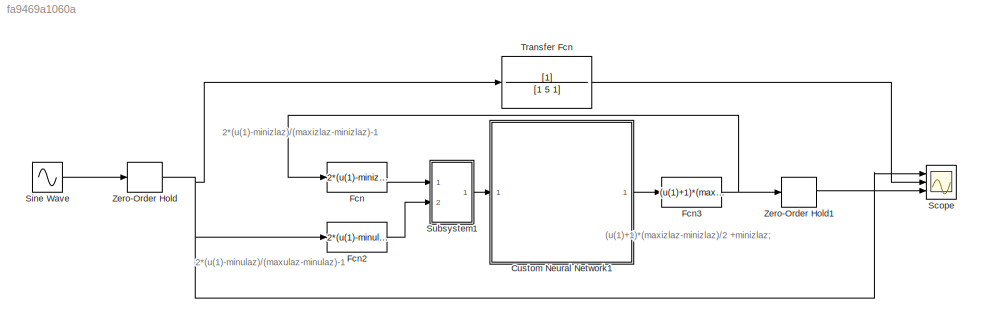
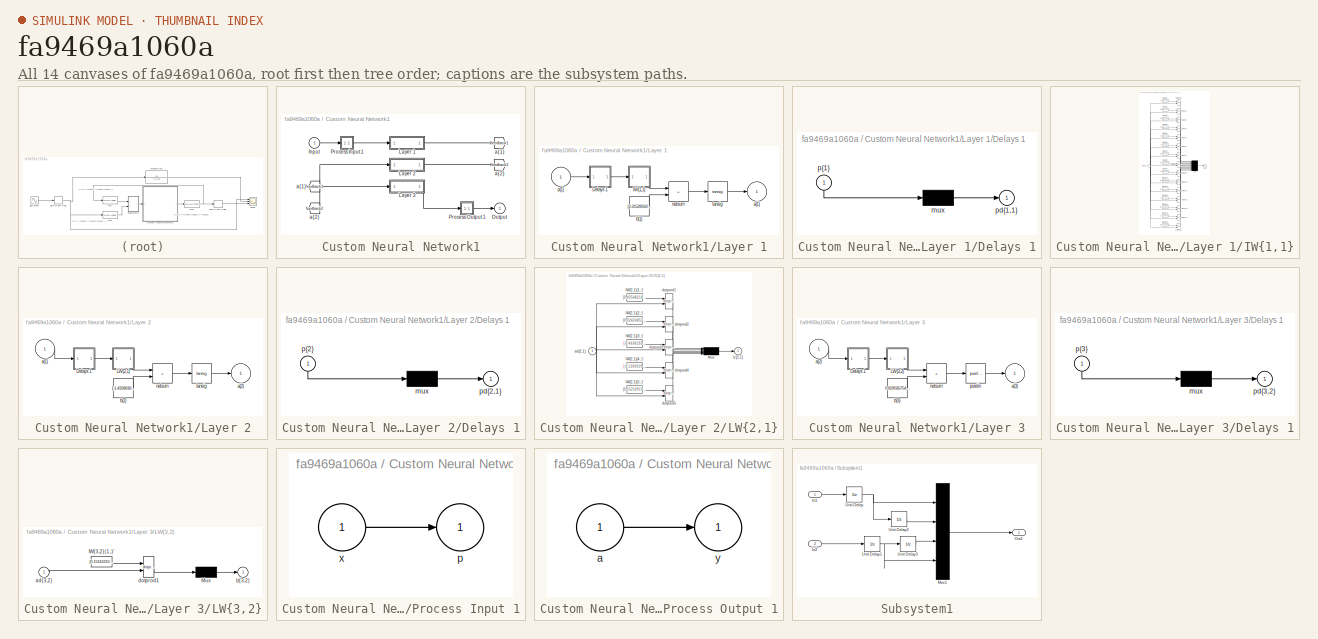
[diagram: thumbnail index - all 14 canvases of the model, root first then tree order]
MODEL slx_fa9469a1060a
KIND model
CONFIG AbsTol = auto
CONFIG EnableMultiTasking = off
CONFIG FixedStep = auto
CONFIG MaxStep = auto
CONFIG MinStep = auto
CONFIG RelTol = 1e-3
CONFIG SampleTimeConstraint = Unconstrained
CONFIG Solver = VariableStepAuto
CONFIG SolverName = VariableStepAuto
CONFIG StartTime = 0.0
CONFIG StopTime = 100
BLOCK [SubSystem] Custom Neural Network1
  Ports = [1, 1]
  RequestExecContextInheritance = off
BLOCK [From] Custom Neural Network1/ a{1} 
  GotoTag = feedback1
BLOCK [From] Custom Neural Network1/ a{2} 
  GotoTag = feedback2
BLOCK [Inport] Custom Neural Network1/Input
  PortDimensions = 4
  SampleTime = 0.1
BLOCK [SubSystem] Custom Neural Network1/Layer 1
  Ports = [1, 1]
  RequestExecContextInheritance = off
BLOCK [SubSystem] Custom Neural Network1/Layer 1/Delays 1
  Ports = [1, 1]
  RequestExecContextInheritance = off
BLOCK [Mux] Custom Neural Network1/Layer 1/Delays 1/mux
  Inputs = 1
  Ports = [1, 1]
BLOCK [Outport] Custom Neural Network1/Layer 1/Delays 1/pd{1,1}
BLOCK [Inport] Custom Neural Network1/Layer 1/Delays 1/p{1}
  NameLocation = left
  PortDimensions = 4
  SampleTime = 0.1
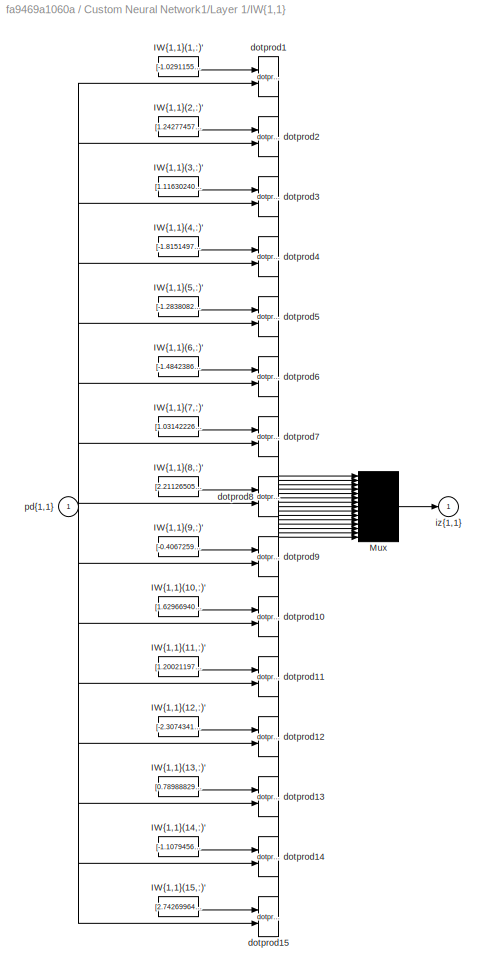
BLOCK [SubSystem] Custom Neural Network1/Layer 1/IW{1,1}
  Ports = [1, 1]
  RequestExecContextInheritance = off
BLOCK [Constant] Custom Neural Network1/Layer 1/IW{1,1}/IW{1,1}(1,:)'
  Value = [-1.0291155701769039154669371782802045345306396484375;-2.255512542336703507572792659630067646503448486328125;-1.4483181639200883861207103109336458146572113037109375;0.77960960178201454962021443861885927617549896240234375]
BLOCK [Constant] Custom Neural Network1/Layer 1/IW{1,1}/IW{1,1}(10,:)'
  Value = [1.629669409987121841965063140378333628177642822265625;-2.173145425208677483652763839927501976490020751953125;0.35397342789237473681396295432932674884796142578125;-0.61057190011148720909517351174145005643367767333984375]
BLOCK [Constant] Custom Neural Network1/Layer 1/IW{1,1}/IW{1,1}(11,:)'
  Value = [1.200211971528984289392383288941346108913421630859375;1.5338548277707622080612281934008933603763580322265625;1.2425256743466650544149842971819452941417694091796875;1.422132462005075925759456367813982069492340087890625]
BLOCK [Constant] Custom Neural Network1/Layer 1/IW{1,1}/IW{1,1}(12,:)'
  Value = [-2.307434181233417813672303964267484843730926513671875;-0.0303570894295459546563531461060847504995763301849365234375;0.327184486534953522518520685480325482785701751708984375;1.3556417899942043714389683373156003654003143310546875]
BLOCK [Constant] Custom Neural Network1/Layer 1/IW{1,1}/IW{1,1}(13,:)'
  Value = [0.7898882912865758942899674366344697773456573486328125;-2.317135284868161448912360356189310550689697265625;-0.4331074494885580605796349118463695049285888671875;-0.95938206439692663707319297827780246734619140625]
BLOCK [Constant] Custom Neural Network1/Layer 1/IW{1,1}/IW{1,1}(14,:)'
  Value = [-1.107945604058963251503655556007288396358489990234375;-1.5390843341513853470559070046874694526195526123046875;1.3242508900751579492549581118510104715824127197265625;1.5110029335690029483885155059397220611572265625]
BLOCK [Constant] Custom Neural Network1/Layer 1/IW{1,1}/IW{1,1}(15,:)'
  Value = [2.742699642512712809860886409296654164791107177734375;0.91823525845086539920458790220436640083789825439453125;1.1740830029367594899980531408800743520259857177734375;-0.87326981535046155347146168423932977020740509033203125]
BLOCK [Constant] Custom Neural Network1/Layer 1/IW{1,1}/IW{1,1}(2,:)'
  Value = [1.2427745731433936793308703272487036883831024169921875;-0.5220998161975856088901082330266945064067840576171875;1.8163287515879285027864398216479457914829254150390625;0.83740361475553282133432730915956199169158935546875]
BLOCK [Constant] Custom Neural Network1/Layer 1/IW{1,1}/IW{1,1}(3,:)'
  Value = [1.1163024098278773177383982329047285020351409912109375;-0.2282061261135282237422217122002621181309223175048828125;-1.12830238418769734920488190255127847194671630859375;2.369038935399611300880451381090097129344940185546875]
BLOCK [Constant] Custom Neural Network1/Layer 1/IW{1,1}/IW{1,1}(4,:)'
  Value = [-1.8151497892048935600683989832759834825992584228515625;-0.1997879874198093264059394869036623276770114898681640625;1.677614933028069632570122848846949636936187744140625;-1.092262581167720014718724996782839298248291015625]
BLOCK [Constant] Custom Neural Network1/Layer 1/IW{1,1}/IW{1,1}(5,:)'
  Value = [-1.2838082196957085745481208505225367844104766845703125;1.6765957035778138450865526465349830687046051025390625;-1.199443531132967422081492259167134761810302734375;1.2403502862946595985960129837621934711933135986328125]
BLOCK [Constant] Custom Neural Network1/Layer 1/IW{1,1}/IW{1,1}(6,:)'
  Value = [-1.484238689591558024716277941479347646236419677734375;-0.93947750457144485469740402550087310373783111572265625;1.512749469688689618607213560608215630054473876953125;-1.4333773885276774873176464097923599183559417724609375]
BLOCK [Constant] Custom Neural Network1/Layer 1/IW{1,1}/IW{1,1}(7,:)'
  Value = [1.0314222620239597016933430495555512607097625732421875;1.56231124902995777148362321895547211170196533203125;-1.2230626549783158996120846495614387094974517822265625;-1.1359240097175551387209679887746460735797882080078125]
BLOCK [Constant] Custom Neural Network1/Layer 1/IW{1,1}/IW{1,1}(8,:)'
  Value = [2.211265051855679342196481229620985686779022216796875;-0.2338769270561522894968931041148607619106769561767578125;-1.43654699136425900718450066051445901393890380859375;0.51419175212697598720268388206022791564464569091796875]
BLOCK [Constant] Custom Neural Network1/Layer 1/IW{1,1}/IW{1,1}(9,:)'
  Value = [-0.406725919335693852918467428025905974209308624267578125;-1.7386940638287045057808199999271892011165618896484375;-1.503189525892959732544795770081691443920135498046875;0.074896663922190576112569715405697934329509735107421875]
BLOCK [Mux] Custom Neural Network1/Layer 1/IW{1,1}/Mux
  Inputs = 15
  Ports = [15, 1]
BLOCK [Reference] Custom Neural Network1/Layer 1/IW{1,1}/dotprod1  REF=neural/Weight Functions/dotprod
  Ports = [2, 1]
  SourceBlock = neural/Weight Functions/dotprod
  SourceProductBaseCode = NN
  SourceType = DOTPROD
BLOCK [Reference] Custom Neural Network1/Layer 1/IW{1,1}/dotprod10  REF=neural/Weight Functions/dotprod
  Ports = [2, 1]
  SourceBlock = neural/Weight Functions/dotprod
  SourceProductBaseCode = NN
  SourceType = DOTPROD
BLOCK [Reference] Custom Neural Network1/Layer 1/IW{1,1}/dotprod11  REF=neural/Weight Functions/dotprod
  Ports = [2, 1]
  SourceBlock = neural/Weight Functions/dotprod
  SourceProductBaseCode = NN
  SourceType = DOTPROD
BLOCK [Reference] Custom Neural Network1/Layer 1/IW{1,1}/dotprod12  REF=neural/Weight Functions/dotprod
  Ports = [2, 1]
  SourceBlock = neural/Weight Functions/dotprod
  SourceProductBaseCode = NN
  SourceType = DOTPROD
BLOCK [Reference] Custom Neural Network1/Layer 1/IW{1,1}/dotprod13  REF=neural/Weight Functions/dotprod
  Ports = [2, 1]
  SourceBlock = neural/Weight Functions/dotprod
  SourceProductBaseCode = NN
  SourceType = DOTPROD
BLOCK [Reference] Custom Neural Network1/Layer 1/IW{1,1}/dotprod14  REF=neural/Weight Functions/dotprod
  Ports = [2, 1]
  SourceBlock = neural/Weight Functions/dotprod
  SourceProductBaseCode = NN
  SourceType = DOTPROD
BLOCK [Reference] Custom Neural Network1/Layer 1/IW{1,1}/dotprod15  REF=neural/Weight Functions/dotprod
  Ports = [2, 1]
  SourceBlock = neural/Weight Functions/dotprod
  SourceProductBaseCode = NN
  SourceType = DOTPROD
BLOCK [Reference] Custom Neural Network1/Layer 1/IW{1,1}/dotprod2  REF=neural/Weight Functions/dotprod
  Ports = [2, 1]
  SourceBlock = neural/Weight Functions/dotprod
  SourceProductBaseCode = NN
  SourceType = DOTPROD
BLOCK [Reference] Custom Neural Network1/Layer 1/IW{1,1}/dotprod3  REF=neural/Weight Functions/dotprod
  Ports = [2, 1]
  SourceBlock = neural/Weight Functions/dotprod
  SourceProductBaseCode = NN
  SourceType = DOTPROD
BLOCK [Reference] Custom Neural Network1/Layer 1/IW{1,1}/dotprod4  REF=neural/Weight Functions/dotprod
  Ports = [2, 1]
  SourceBlock = neural/Weight Functions/dotprod
  SourceProductBaseCode = NN
  SourceType = DOTPROD
BLOCK [Reference] Custom Neural Network1/Layer 1/IW{1,1}/dotprod5  REF=neural/Weight Functions/dotprod
  Ports = [2, 1]
  SourceBlock = neural/Weight Functions/dotprod
  SourceProductBaseCode = NN
  SourceType = DOTPROD
BLOCK [Reference] Custom Neural Network1/Layer 1/IW{1,1}/dotprod6  REF=neural/Weight Functions/dotprod
  Ports = [2, 1]
  SourceBlock = neural/Weight Functions/dotprod
  SourceProductBaseCode = NN
  SourceType = DOTPROD
BLOCK [Reference] Custom Neural Network1/Layer 1/IW{1,1}/dotprod7  REF=neural/Weight Functions/dotprod
  Ports = [2, 1]
  SourceBlock = neural/Weight Functions/dotprod
  SourceProductBaseCode = NN
  SourceType = DOTPROD
BLOCK [Reference] Custom Neural Network1/Layer 1/IW{1,1}/dotprod8  REF=neural/Weight Functions/dotprod
  Ports = [2, 1]
  SourceBlock = neural/Weight Functions/dotprod
  SourceProductBaseCode = NN
  SourceType = DOTPROD
BLOCK [Reference] Custom Neural Network1/Layer 1/IW{1,1}/dotprod9  REF=neural/Weight Functions/dotprod
  Ports = [2, 1]
  SourceBlock = neural/Weight Functions/dotprod
  SourceProductBaseCode = NN
  SourceType = DOTPROD
BLOCK [Outport] Custom Neural Network1/Layer 1/IW{1,1}/iz{1,1}
BLOCK [Inport] Custom Neural Network1/Layer 1/IW{1,1}/pd{1,1}
  PortDimensions = 4
  SampleTime = 0.1
BLOCK [Outport] Custom Neural Network1/Layer 1/a{1}
  InitialOutput = [0;0;0;0;0;0;0;0;0;0;0;0;0;0;0]
BLOCK [Constant] Custom Neural Network1/Layer 1/b{1}
  Value = [2.21528562240864790311434262548573315143585205078125;-2.7247346522280491143419567379169166088104248046875;-1.8476996774229335063211010492523200809955596923828125;1.7421674196980578841476017259992659091949462890625;1.3998164693058685603688218179740943014621734619140625;0.63227298696650746645531171452603302896022796630859375;0.58777731246708120327326696497038938105106353759765625;0.3616458975165529...<+410ch>
BLOCK [Sum] Custom Neural Network1/Layer 1/netsum
  IconShape = rectangular
  InputSameDT = on
  Inputs = 2
  OutDataTypeStr = Inherit: Same as first input
  Ports = [2, 1]
  SaturateOnIntegerOverflow = on
BLOCK [Inport] Custom Neural Network1/Layer 1/p{1}
  PortDimensions = 4
  SampleTime = 0.1
BLOCK [Reference] Custom Neural Network1/Layer 1/tansig  REF=neural/Transfer Functions/tansig
  Ports = [1, 1]
  SourceBlock = neural/Transfer Functions/tansig
  SourceProductBaseCode = NN
  SourceType = TANSIG
BLOCK [SubSystem] Custom Neural Network1/Layer 2
  Ports = [1, 1]
  RequestExecContextInheritance = off
BLOCK [SubSystem] Custom Neural Network1/Layer 2/Delays 1
  Ports = [1, 1]
  RequestExecContextInheritance = off
BLOCK [Mux] Custom Neural Network1/Layer 2/Delays 1/mux
  Inputs = 1
  Ports = [1, 1]
BLOCK [Outport] Custom Neural Network1/Layer 2/Delays 1/pd{2,1}
BLOCK [Inport] Custom Neural Network1/Layer 2/Delays 1/p{2}
  NameLocation = left
  PortDimensions = 15
  SampleTime = 0.1
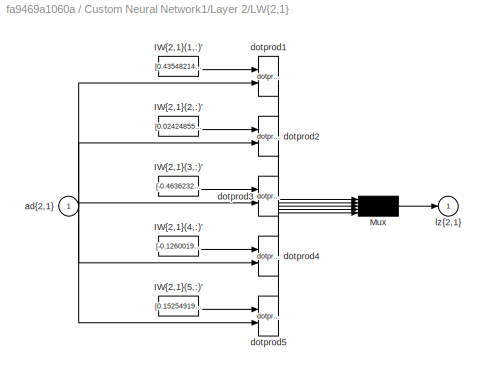
BLOCK [SubSystem] Custom Neural Network1/Layer 2/LW{2,1}
  Ports = [1, 1]
  RequestExecContextInheritance = off
BLOCK [Constant] Custom Neural Network1/Layer 2/LW{2,1}/IW{2,1}(1,:)'
  Value = [0.4354821464226983351863964344374835491180419921875;0.26919713428909963770507829394773580133914947509765625;0.768252357538353525256979992263950407505035400390625;0.2131223560622383661478096428254502825438976287841796875;-0.25826347362550106101508617939543910324573516845703125;-0.4605975583704158271558526394073851406574249267578125;0.206935703899873313371671201821300201117992401123046875;-0.239668...<+453ch>
BLOCK [Constant] Custom Neural Network1/Layer 2/LW{2,1}/IW{2,1}(2,:)'
  Value = [0.0242485573091695098824072118759431759826838970184326171875;0.1847131421604959189419759013617294840514659881591796875;-0.266731846446552456342260484234429895877838134765625;0.585688154100865165929690192569978535175323486328125;-0.61476174226257473964807331867632456123828887939453125;-0.188148573525990625565640357308438979089260101318359375;0.6371424859279708474701919840299524366855621337890625;-...<+457ch>
BLOCK [Constant] Custom Neural Network1/Layer 2/LW{2,1}/IW{2,1}(3,:)'
  Value = [-0.463623254474451684803426587677677161991596221923828125;-0.2398249024525891670567290248072822578251361846923828125;0.53624277446465662411156927191768772900104522705078125;-0.0573151645966329947867734517785720527172088623046875;-0.74492884857042940272009445834555663168430328369140625;0.1081395832200853224236425376147963106632232666015625;-1.0935132480005791411059590245713479816913604736328125;0....<+448ch>
BLOCK [Constant] Custom Neural Network1/Layer 2/LW{2,1}/IW{2,1}(4,:)'
  Value = [-0.1260019518534551685728928305252338759601116180419921875;-0.0411719433851967797632909196181572042405605316162109375;0.51893471799316770454169045478920452296733856201171875;-0.1934689319416795505457429271700675599277019500732421875;-0.796706134299519863617433657054789364337921142578125;-0.03420059151169259348268525400271755643188953399658203125;-0.793309544565195090548570533428573980927467346191...<+454ch>
BLOCK [Constant] Custom Neural Network1/Layer 2/LW{2,1}/IW{2,1}(5,:)'
  Value = [0.1525491968418809796137480816469178535044193267822265625;-0.5060930296580752330015684492536820471286773681640625;0.07127736743162700616682769805265706963837146759033203125;0.74202961153350355250069014800828881561756134033203125;-0.06264865372806140142447617336074472405016422271728515625;0.316817125226219242772884854275616817176342010498046875;0.199526349825661697412471085044671781361103057861328...<+447ch>
BLOCK [Mux] Custom Neural Network1/Layer 2/LW{2,1}/Mux
  Inputs = 5
  Ports = [5, 1]
BLOCK [Inport] Custom Neural Network1/Layer 2/LW{2,1}/ad{2,1}
  PortDimensions = 15
  SampleTime = 0.1
BLOCK [Reference] Custom Neural Network1/Layer 2/LW{2,1}/dotprod1  REF=neural/Weight Functions/dotprod
  Ports = [2, 1]
  SourceBlock = neural/Weight Functions/dotprod
  SourceProductBaseCode = NN
  SourceType = DOTPROD
BLOCK [Reference] Custom Neural Network1/Layer 2/LW{2,1}/dotprod2  REF=neural/Weight Functions/dotprod
  Ports = [2, 1]
  SourceBlock = neural/Weight Functions/dotprod
  SourceProductBaseCode = NN
  SourceType = DOTPROD
BLOCK [Reference] Custom Neural Network1/Layer 2/LW{2,1}/dotprod3  REF=neural/Weight Functions/dotprod
  Ports = [2, 1]
  SourceBlock = neural/Weight Functions/dotprod
  SourceProductBaseCode = NN
  SourceType = DOTPROD
BLOCK [Reference] Custom Neural Network1/Layer 2/LW{2,1}/dotprod4  REF=neural/Weight Functions/dotprod
  Ports = [2, 1]
  SourceBlock = neural/Weight Functions/dotprod
  SourceProductBaseCode = NN
  SourceType = DOTPROD
BLOCK [Reference] Custom Neural Network1/Layer 2/LW{2,1}/dotprod5  REF=neural/Weight Functions/dotprod
  Ports = [2, 1]
  SourceBlock = neural/Weight Functions/dotprod
  SourceProductBaseCode = NN
  SourceType = DOTPROD
BLOCK [Outport] Custom Neural Network1/Layer 2/LW{2,1}/lz{2,1}
BLOCK [Inport] Custom Neural Network1/Layer 2/a{1} 
  PortDimensions = 15
  SampleTime = 0.1
BLOCK [Outport] Custom Neural Network1/Layer 2/a{2}
  InitialOutput = [0;0;0;0;0]
BLOCK [Constant] Custom Neural Network1/Layer 2/b{2}
  Value = [-1.4328818670903669119098822193336673080921173095703125;-0.440669598503219794860541469461168162524700164794921875;-0.306822323461132973054787953515187837183475494384765625;0.4800858214746022145646975332056172192096710205078125;1.6370112646423484736857290045008994638919830322265625]
BLOCK [Sum] Custom Neural Network1/Layer 2/netsum
  IconShape = rectangular
  InputSameDT = on
  Inputs = 2
  OutDataTypeStr = Inherit: Same as first input
  Ports = [2, 1]
  SaturateOnIntegerOverflow = on
BLOCK [Reference] Custom Neural Network1/Layer 2/tansig  REF=neural/Transfer Functions/tansig
  Ports = [1, 1]
  SourceBlock = neural/Transfer Functions/tansig
  SourceProductBaseCode = NN
  SourceType = TANSIG
BLOCK [SubSystem] Custom Neural Network1/Layer 3
  Ports = [1, 1]
  RequestExecContextInheritance = off
BLOCK [SubSystem] Custom Neural Network1/Layer 3/Delays 1
  Ports = [1, 1]
  RequestExecContextInheritance = off
BLOCK [Mux] Custom Neural Network1/Layer 3/Delays 1/mux
  Inputs = 1
  Ports = [1, 1]
BLOCK [Outport] Custom Neural Network1/Layer 3/Delays 1/pd{3,2}
BLOCK [Inport] Custom Neural Network1/Layer 3/Delays 1/p{3}
  NameLocation = left
  PortDimensions = 5
  SampleTime = 0.1
BLOCK [SubSystem] Custom Neural Network1/Layer 3/LW{3,2}
  Ports = [1, 1]
  RequestExecContextInheritance = off
BLOCK [Constant] Custom Neural Network1/Layer 3/LW{3,2}/IW{3,2}(1,:)'
  Value = [0.1541621054531518153485336597441346384584903717041015625;-1.05070029514043650209487168467603623867034912109375;1.3495077384393479036361895850859582424163818359375;0.441520255841097497562230955736595205962657928466796875;0.90438324111028389751254508155398070812225341796875]
BLOCK [Mux] Custom Neural Network1/Layer 3/LW{3,2}/Mux
  Inputs = 1
  Ports = [1, 1]
BLOCK [Inport] Custom Neural Network1/Layer 3/LW{3,2}/ad{3,2}
  PortDimensions = 5
  SampleTime = 0.1
BLOCK [Reference] Custom Neural Network1/Layer 3/LW{3,2}/dotprod1  REF=neural/Weight Functions/dotprod
  Ports = [2, 1]
  SourceBlock = neural/Weight Functions/dotprod
  SourceProductBaseCode = NN
  SourceType = DOTPROD
BLOCK [Outport] Custom Neural Network1/Layer 3/LW{3,2}/lz{3,2}
BLOCK [Inport] Custom Neural Network1/Layer 3/a{2} 
  PortDimensions = 5
  SampleTime = 0.1
BLOCK [Outport] Custom Neural Network1/Layer 3/a{3}
  InitialOutput = 0
BLOCK [Constant] Custom Neural Network1/Layer 3/b{3}
  Value = 0.82902675447613416448433554251096211373805999755859375
BLOCK [Sum] Custom Neural Network1/Layer 3/netsum
  IconShape = rectangular
  InputSameDT = on
  Inputs = 2
  OutDataTypeStr = Inherit: Same as first input
  Ports = [2, 1]
  SaturateOnIntegerOverflow = on
BLOCK [Reference] Custom Neural Network1/Layer 3/purelin  REF=neural/Transfer Functions/purelin
  Ports = [1, 1]
  SourceBlock = neural/Transfer Functions/purelin
  SourceProductBaseCode = NN
  SourceType = PURELIN
BLOCK [Outport] Custom Neural Network1/Output
  InitialOutput = 0
BLOCK [SubSystem] Custom Neural Network1/Process Input 1
  Ports = [1, 1]
  RequestExecContextInheritance = off
BLOCK [Outport] Custom Neural Network1/Process Input 1/p
  PortDimensions = 4
  SampleTime = 0.1
BLOCK [Inport] Custom Neural Network1/Process Input 1/x
  PortDimensions = 4
  SampleTime = 0.1
BLOCK [SubSystem] Custom Neural Network1/Process Output 1
  Ports = [1, 1]
  RequestExecContextInheritance = off
BLOCK [Inport] Custom Neural Network1/Process Output 1/a
  PortDimensions = 1
  SampleTime = 0.1
BLOCK [Outport] Custom Neural Network1/Process Output 1/y
  PortDimensions = 1
  SampleTime = 0.1
BLOCK [Goto] Custom Neural Network1/a{1}
  GotoTag = feedback1
BLOCK [Goto] Custom Neural Network1/a{2}
  GotoTag = feedback2
BLOCK [Fcn] Fcn
  Expr = 2*(u(1)-minizlaz)/(maxizlaz-minizlaz)-1
BLOCK [Fcn] Fcn2
  Expr = 2*(u(1)-minulaz)/(maxulaz-minulaz)-1
BLOCK [Fcn] Fcn3
  Expr = (u(1)+1)*(maxizlaz-minizlaz)/2 +minizlaz;
BLOCK [Scope] Scope
  Floating = off
  NumInputPorts = 3
  Ports = [3]
  ScopeSpecificationString = Simulink.scopes.TimeScopeBlockCfg('CurrentConfiguration', extmgr.ConfigurationSet(extmgr.Configuration('Core','General UI',true),extmgr.Configuration('Core','Source UI',true),extmgr.Configuration('Sources','WiredSimulink',true),extmgr.Configuration('Visuals','Time Domain',true,'SerializedDisplays',{struct('MinYLimReal','-2.49998','MaxYLimReal','2.49998','YLabelReal','','MinYLimMag','0.00000','MaxY...<+1421ch>
BLOCK [Sin] Sine Wave
  Amplitude = 2
  Frequency = 0.25
  Ports = [0, 1]
  SampleTime = 0.1
BLOCK [SubSystem] Subsystem1
  Ports = [2, 1]
  RequestExecContextInheritance = off
BLOCK [Inport] Subsystem1/In1
BLOCK [Inport] Subsystem1/In2
  Port = 2
BLOCK [Mux] Subsystem1/Mux1
  DisplayOption = bar
  Ports = [4, 1]
BLOCK [Outport] Subsystem1/Out1
BLOCK [UnitDelay] Subsystem1/Unit Delay
  HasFrameUpgradeWarning = on
  SampleTime = -1
BLOCK [UnitDelay] Subsystem1/Unit Delay1
  HasFrameUpgradeWarning = on
  SampleTime = -1
BLOCK [UnitDelay] Subsystem1/Unit Delay2
  HasFrameUpgradeWarning = on
  SampleTime = -1
BLOCK [UnitDelay] Subsystem1/Unit Delay3
  HasFrameUpgradeWarning = on
  SampleTime = -1
BLOCK [TransferFcn] Transfer Fcn
  Denominator = [1 5 1]
BLOCK [ZeroOrderHold] Zero-Order Hold
  SampleTime = 0.1
BLOCK [ZeroOrderHold] Zero-Order Hold1
  SampleTime = 0.1
ANNOTATION (root): (u(1)+1)*(maxizlaz-minizlaz)/2 +minizlaz;
ANNOTATION (root): 2*(u(1)-minizlaz)/(maxizlaz-minizlaz)-1
ANNOTATION (root): 2*(u(1)-minulaz)/(maxulaz-minulaz)-1
LINE Custom Neural Network1/ a{1} :1 -> Custom Neural Network1/Layer 2:1
LINE Custom Neural Network1/ a{2} :1 -> Custom Neural Network1/Layer 3:1
LINE Custom Neural Network1/Input:1 -> Custom Neural Network1/Process Input 1:1
LINE Custom Neural Network1/Layer 1/Delays 1/mux:1 -> Custom Neural Network1/Layer 1/Delays 1/pd{1,1}:1
LINE Custom Neural Network1/Layer 1/Delays 1/p{1}:1 -> Custom Neural Network1/Layer 1/Delays 1/mux:1
LINE Custom Neural Network1/Layer 1/Delays 1:1 -> Custom Neural Network1/Layer 1/IW{1,1}:1
LINE Custom Neural Network1/Layer 1/IW{1,1}/IW{1,1}(1,:)':1 -> Custom Neural Network1/Layer 1/IW{1,1}/dotprod1:1
LINE Custom Neural Network1/Layer 1/IW{1,1}/IW{1,1}(10,:)':1 -> Custom Neural Network1/Layer 1/IW{1,1}/dotprod10:1
LINE Custom Neural Network1/Layer 1/IW{1,1}/IW{1,1}(11,:)':1 -> Custom Neural Network1/Layer 1/IW{1,1}/dotprod11:1
LINE Custom Neural Network1/Layer 1/IW{1,1}/IW{1,1}(12,:)':1 -> Custom Neural Network1/Layer 1/IW{1,1}/dotprod12:1
LINE Custom Neural Network1/Layer 1/IW{1,1}/IW{1,1}(13,:)':1 -> Custom Neural Network1/Layer 1/IW{1,1}/dotprod13:1
LINE Custom Neural Network1/Layer 1/IW{1,1}/IW{1,1}(14,:)':1 -> Custom Neural Network1/Layer 1/IW{1,1}/dotprod14:1
LINE Custom Neural Network1/Layer 1/IW{1,1}/IW{1,1}(15,:)':1 -> Custom Neural Network1/Layer 1/IW{1,1}/dotprod15:1
LINE Custom Neural Network1/Layer 1/IW{1,1}/IW{1,1}(2,:)':1 -> Custom Neural Network1/Layer 1/IW{1,1}/dotprod2:1
LINE Custom Neural Network1/Layer 1/IW{1,1}/IW{1,1}(3,:)':1 -> Custom Neural Network1/Layer 1/IW{1,1}/dotprod3:1
LINE Custom Neural Network1/Layer 1/IW{1,1}/IW{1,1}(4,:)':1 -> Custom Neural Network1/Layer 1/IW{1,1}/dotprod4:1
LINE Custom Neural Network1/Layer 1/IW{1,1}/IW{1,1}(5,:)':1 -> Custom Neural Network1/Layer 1/IW{1,1}/dotprod5:1
LINE Custom Neural Network1/Layer 1/IW{1,1}/IW{1,1}(6,:)':1 -> Custom Neural Network1/Layer 1/IW{1,1}/dotprod6:1
LINE Custom Neural Network1/Layer 1/IW{1,1}/IW{1,1}(7,:)':1 -> Custom Neural Network1/Layer 1/IW{1,1}/dotprod7:1
LINE Custom Neural Network1/Layer 1/IW{1,1}/IW{1,1}(8,:)':1 -> Custom Neural Network1/Layer 1/IW{1,1}/dotprod8:1
LINE Custom Neural Network1/Layer 1/IW{1,1}/IW{1,1}(9,:)':1 -> Custom Neural Network1/Layer 1/IW{1,1}/dotprod9:1
LINE Custom Neural Network1/Layer 1/IW{1,1}/Mux:1 -> Custom Neural Network1/Layer 1/IW{1,1}/iz{1,1}:1
LINE Custom Neural Network1/Layer 1/IW{1,1}/dotprod10:1 -> Custom Neural Network1/Layer 1/IW{1,1}/Mux:10
LINE Custom Neural Network1/Layer 1/IW{1,1}/dotprod11:1 -> Custom Neural Network1/Layer 1/IW{1,1}/Mux:11
LINE Custom Neural Network1/Layer 1/IW{1,1}/dotprod12:1 -> Custom Neural Network1/Layer 1/IW{1,1}/Mux:12
LINE Custom Neural Network1/Layer 1/IW{1,1}/dotprod13:1 -> Custom Neural Network1/Layer 1/IW{1,1}/Mux:13
LINE Custom Neural Network1/Layer 1/IW{1,1}/dotprod14:1 -> Custom Neural Network1/Layer 1/IW{1,1}/Mux:14
LINE Custom Neural Network1/Layer 1/IW{1,1}/dotprod15:1 -> Custom Neural Network1/Layer 1/IW{1,1}/Mux:15
LINE Custom Neural Network1/Layer 1/IW{1,1}/dotprod1:1 -> Custom Neural Network1/Layer 1/IW{1,1}/Mux:1
LINE Custom Neural Network1/Layer 1/IW{1,1}/dotprod2:1 -> Custom Neural Network1/Layer 1/IW{1,1}/Mux:2
LINE Custom Neural Network1/Layer 1/IW{1,1}/dotprod3:1 -> Custom Neural Network1/Layer 1/IW{1,1}/Mux:3
LINE Custom Neural Network1/Layer 1/IW{1,1}/dotprod4:1 -> Custom Neural Network1/Layer 1/IW{1,1}/Mux:4
LINE Custom Neural Network1/Layer 1/IW{1,1}/dotprod5:1 -> Custom Neural Network1/Layer 1/IW{1,1}/Mux:5
LINE Custom Neural Network1/Layer 1/IW{1,1}/dotprod6:1 -> Custom Neural Network1/Layer 1/IW{1,1}/Mux:6
LINE Custom Neural Network1/Layer 1/IW{1,1}/dotprod7:1 -> Custom Neural Network1/Layer 1/IW{1,1}/Mux:7
LINE Custom Neural Network1/Layer 1/IW{1,1}/dotprod8:1 -> Custom Neural Network1/Layer 1/IW{1,1}/Mux:8
LINE Custom Neural Network1/Layer 1/IW{1,1}/dotprod9:1 -> Custom Neural Network1/Layer 1/IW{1,1}/Mux:9
NET Custom Neural Network1/Layer 1/IW{1,1}/pd{1,1}:1 -> Custom Neural Network1/Layer 1/IW{1,1}/dotprod10:2, Custom Neural Network1/Layer 1/IW{1,1}/dotprod11:2, Custom Neural Network1/Layer 1/IW{1,1}/dotprod12:2, Custom Neural Network1/Layer 1/IW{1,1}/dotprod13:2, Custom Neural Network1/Layer 1/IW{1,1}/dotprod14:2, Custom Neural Network1/Layer 1/IW{1,1}/dotprod15:2, Custom Neural Network1/Layer 1/IW{1,1}/dotprod1:2, Custom Neural Network1/Layer 1/IW{1,1}/dotprod2:2, Custom Neural Network1/Layer 1/IW{1,1}/dotprod3:2, Custom Neural Network1/Layer 1/IW{1,1}/dotprod4:2, Custom Neural Network1/Layer 1/IW{1,1}/dotprod5:2, Custom Neural Network1/Layer 1/IW{1,1}/dotprod6:2, Custom Neural Network1/Layer 1/IW{1,1}/dotprod7:2, Custom Neural Network1/Layer 1/IW{1,1}/dotprod8:2, Custom Neural Network1/Layer 1/IW{1,1}/dotprod9:2
LINE Custom Neural Network1/Layer 1/IW{1,1}:1 -> Custom Neural Network1/Layer 1/netsum:1
LINE Custom Neural Network1/Layer 1/b{1}:1 -> Custom Neural Network1/Layer 1/netsum:2
LINE Custom Neural Network1/Layer 1/netsum:1 -> Custom Neural Network1/Layer 1/tansig:1
LINE Custom Neural Network1/Layer 1/p{1}:1 -> Custom Neural Network1/Layer 1/Delays 1:1
LINE Custom Neural Network1/Layer 1/tansig:1 -> Custom Neural Network1/Layer 1/a{1}:1
LINE Custom Neural Network1/Layer 1:1 -> Custom Neural Network1/a{1}:1
LINE Custom Neural Network1/Layer 2/Delays 1/mux:1 -> Custom Neural Network1/Layer 2/Delays 1/pd{2,1}:1
LINE Custom Neural Network1/Layer 2/Delays 1/p{2}:1 -> Custom Neural Network1/Layer 2/Delays 1/mux:1
LINE Custom Neural Network1/Layer 2/Delays 1:1 -> Custom Neural Network1/Layer 2/LW{2,1}:1
LINE Custom Neural Network1/Layer 2/LW{2,1}/IW{2,1}(1,:)':1 -> Custom Neural Network1/Layer 2/LW{2,1}/dotprod1:1
LINE Custom Neural Network1/Layer 2/LW{2,1}/IW{2,1}(2,:)':1 -> Custom Neural Network1/Layer 2/LW{2,1}/dotprod2:1
LINE Custom Neural Network1/Layer 2/LW{2,1}/IW{2,1}(3,:)':1 -> Custom Neural Network1/Layer 2/LW{2,1}/dotprod3:1
LINE Custom Neural Network1/Layer 2/LW{2,1}/IW{2,1}(4,:)':1 -> Custom Neural Network1/Layer 2/LW{2,1}/dotprod4:1
LINE Custom Neural Network1/Layer 2/LW{2,1}/IW{2,1}(5,:)':1 -> Custom Neural Network1/Layer 2/LW{2,1}/dotprod5:1
LINE Custom Neural Network1/Layer 2/LW{2,1}/Mux:1 -> Custom Neural Network1/Layer 2/LW{2,1}/lz{2,1}:1
NET Custom Neural Network1/Layer 2/LW{2,1}/ad{2,1}:1 -> Custom Neural Network1/Layer 2/LW{2,1}/dotprod1:2, Custom Neural Network1/Layer 2/LW{2,1}/dotprod2:2, Custom Neural Network1/Layer 2/LW{2,1}/dotprod3:2, Custom Neural Network1/Layer 2/LW{2,1}/dotprod4:2, Custom Neural Network1/Layer 2/LW{2,1}/dotprod5:2
LINE Custom Neural Network1/Layer 2/LW{2,1}/dotprod1:1 -> Custom Neural Network1/Layer 2/LW{2,1}/Mux:1
LINE Custom Neural Network1/Layer 2/LW{2,1}/dotprod2:1 -> Custom Neural Network1/Layer 2/LW{2,1}/Mux:2
LINE Custom Neural Network1/Layer 2/LW{2,1}/dotprod3:1 -> Custom Neural Network1/Layer 2/LW{2,1}/Mux:3
LINE Custom Neural Network1/Layer 2/LW{2,1}/dotprod4:1 -> Custom Neural Network1/Layer 2/LW{2,1}/Mux:4
LINE Custom Neural Network1/Layer 2/LW{2,1}/dotprod5:1 -> Custom Neural Network1/Layer 2/LW{2,1}/Mux:5
LINE Custom Neural Network1/Layer 2/LW{2,1}:1 -> Custom Neural Network1/Layer 2/netsum:1
LINE Custom Neural Network1/Layer 2/a{1} :1 -> Custom Neural Network1/Layer 2/Delays 1:1
LINE Custom Neural Network1/Layer 2/b{2}:1 -> Custom Neural Network1/Layer 2/netsum:2
LINE Custom Neural Network1/Layer 2/netsum:1 -> Custom Neural Network1/Layer 2/tansig:1
LINE Custom Neural Network1/Layer 2/tansig:1 -> Custom Neural Network1/Layer 2/a{2}:1
LINE Custom Neural Network1/Layer 2:1 -> Custom Neural Network1/a{2}:1
LINE Custom Neural Network1/Layer 3/Delays 1/mux:1 -> Custom Neural Network1/Layer 3/Delays 1/pd{3,2}:1
LINE Custom Neural Network1/Layer 3/Delays 1/p{3}:1 -> Custom Neural Network1/Layer 3/Delays 1/mux:1
LINE Custom Neural Network1/Layer 3/Delays 1:1 -> Custom Neural Network1/Layer 3/LW{3,2}:1
LINE Custom Neural Network1/Layer 3/LW{3,2}/IW{3,2}(1,:)':1 -> Custom Neural Network1/Layer 3/LW{3,2}/dotprod1:1
LINE Custom Neural Network1/Layer 3/LW{3,2}/Mux:1 -> Custom Neural Network1/Layer 3/LW{3,2}/lz{3,2}:1
LINE Custom Neural Network1/Layer 3/LW{3,2}/ad{3,2}:1 -> Custom Neural Network1/Layer 3/LW{3,2}/dotprod1:2
LINE Custom Neural Network1/Layer 3/LW{3,2}/dotprod1:1 -> Custom Neural Network1/Layer 3/LW{3,2}/Mux:1
LINE Custom Neural Network1/Layer 3/LW{3,2}:1 -> Custom Neural Network1/Layer 3/netsum:1
LINE Custom Neural Network1/Layer 3/a{2} :1 -> Custom Neural Network1/Layer 3/Delays 1:1
LINE Custom Neural Network1/Layer 3/b{3}:1 -> Custom Neural Network1/Layer 3/netsum:2
LINE Custom Neural Network1/Layer 3/netsum:1 -> Custom Neural Network1/Layer 3/purelin:1
LINE Custom Neural Network1/Layer 3/purelin:1 -> Custom Neural Network1/Layer 3/a{3}:1
LINE Custom Neural Network1/Layer 3:1 -> Custom Neural Network1/Process Output 1:1
LINE Custom Neural Network1/Process Input 1/x:1 -> Custom Neural Network1/Process Input 1/p:1
LINE Custom Neural Network1/Process Input 1:1 -> Custom Neural Network1/Layer 1:1
LINE Custom Neural Network1/Process Output 1/a:1 -> Custom Neural Network1/Process Output 1/y:1
LINE Custom Neural Network1/Process Output 1:1 -> Custom Neural Network1/Output:1
LINE Custom Neural Network1:1 -> Fcn3:1
LINE Fcn2:1 -> Subsystem1:2
NET Fcn3:1 -> Fcn:1, Zero-Order Hold1:1
LINE Fcn:1 -> Subsystem1:1
LINE Sine Wave:1 -> Zero-Order Hold:1
LINE Subsystem1/In1:1 -> Subsystem1/Unit Delay:1
LINE Subsystem1/In2:1 -> Subsystem1/Unit Delay1:1
LINE Subsystem1/Mux1:1 -> Subsystem1/Out1:1
NET Subsystem1/Unit Delay1:1 -> Subsystem1/Mux1:4, Subsystem1/Unit Delay3:1
LINE Subsystem1/Unit Delay2:1 -> Subsystem1/Mux1:2
LINE Subsystem1/Unit Delay3:1 -> Subsystem1/Mux1:3
NET Subsystem1/Unit Delay:1 -> Subsystem1/Mux1:1, Subsystem1/Unit Delay2:1
LINE Subsystem1:1 -> Custom Neural Network1:1
LINE Transfer Fcn:1 -> Scope:2
LINE Zero-Order Hold1:1 -> Scope:3
NET Zero-Order Hold:1 -> Fcn2:1, Scope:1, Transfer Fcn:1
note: NET lines group one-source signal fan-out (src -> all destinations, sorted); 1:1 wires keep LINE
